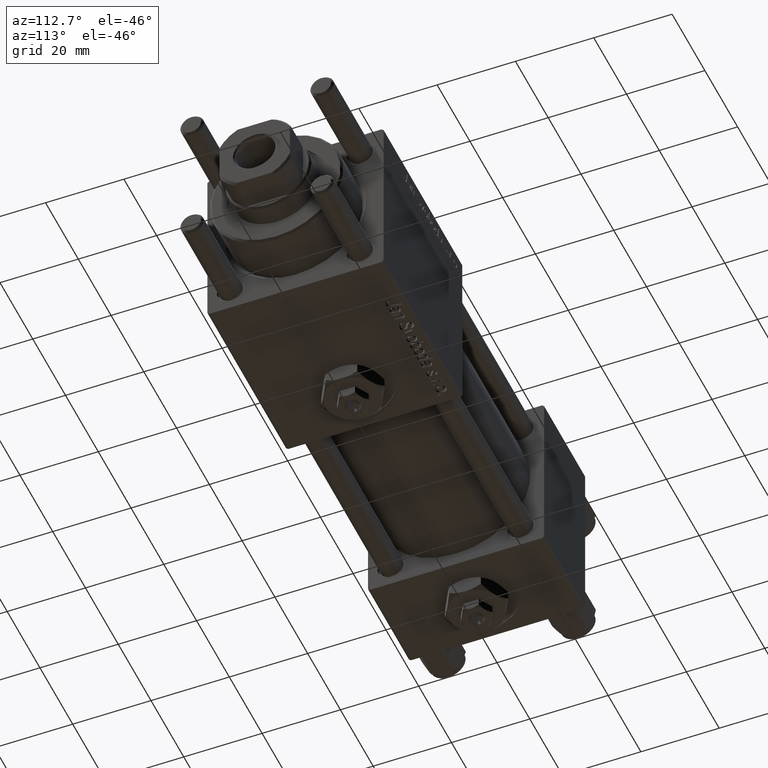
[diagram: clean part render]
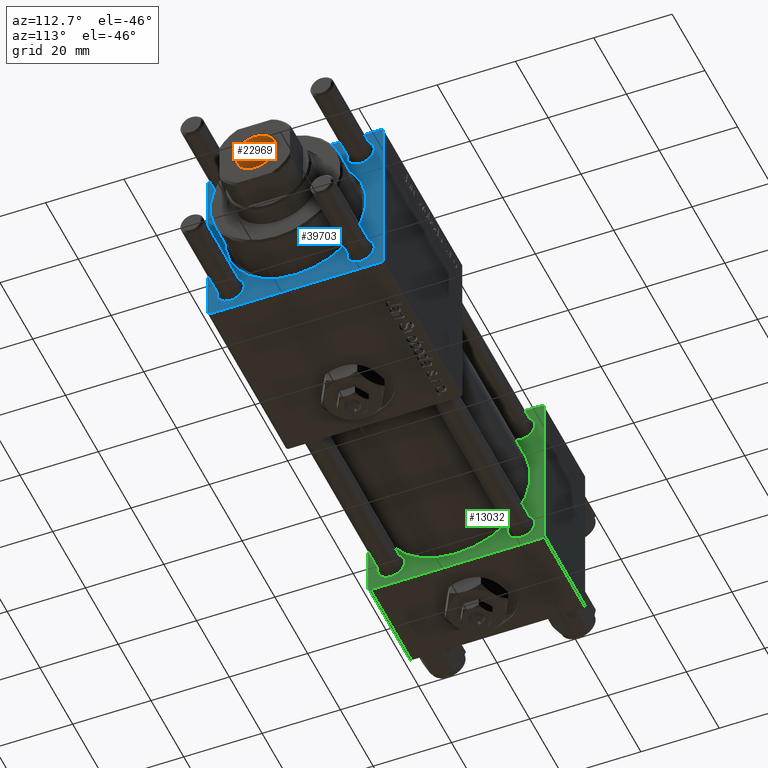
[diagram: same view with three faces highlighted in distinct colors, each labeled with its STEP entity id]
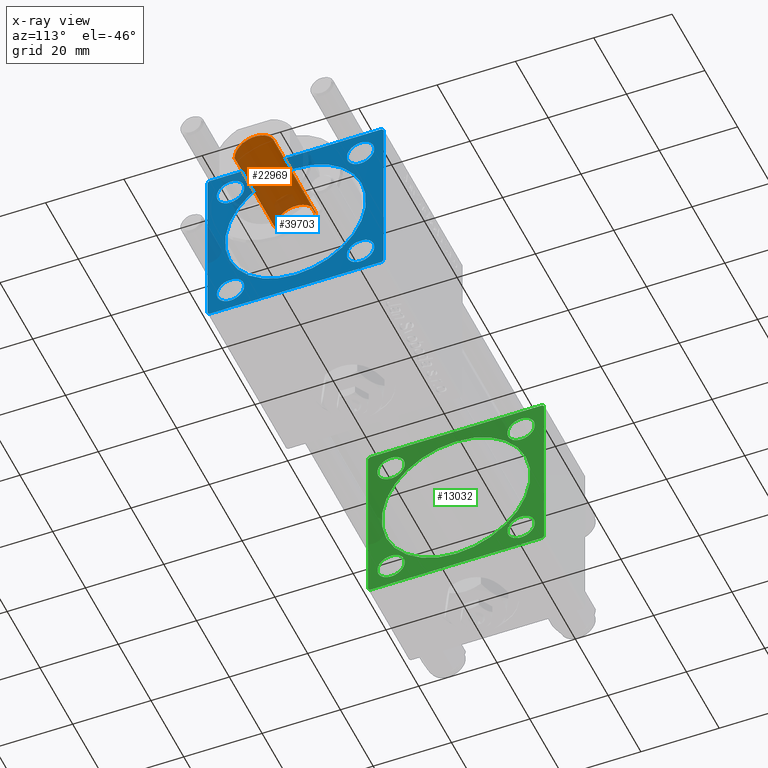
[diagram: x-ray of the same camera — body ghosted, the three highlighted faces saturated]
A machine part, auxiliary view with three faces highlighted in distinct colors.
The next image is the same camera in x-ray (body ghosted, the three faces saturated) — at least one of them is partly hidden behind the body in this view.
Their STEP definitions:

[orange] entity #22969 — the highlighted cylindrical surface (edge-blend (fillet) strip) has radius 5.25 mm, axis along (1, 0, 0).
#507 = VERTEX_POINT ( 'NONE', #9830 ) ;
#764 = ORIENTED_EDGE ( 'NONE', *, *, #10084, .T. ) ;
#1212 = VERTEX_POINT ( 'NONE', #52643 ) ;
#1868 = AXIS2_PLACEMENT_3D ( 'NONE', #24897, #37678, #11201 ) ;
#3160 = EDGE_CURVE ( 'NONE', #44567, #507, #25040, .T. ) ;
#9830 = CARTESIAN_POINT ( 'NONE',  ( -5.249999999999997335, 6.429395695523601195E-16, 122.6999999999999744 ) ) ;
#10084 = EDGE_CURVE ( 'NONE', #507, #13199, #43448, .T. ) ;
#11201 = DIRECTION ( 'NONE',  ( 1.000000000000000000, 0.000000000000000000, 0.000000000000000000 ) ) ;
#13199 = VERTEX_POINT ( 'NONE', #13793 ) ;
#13793 = CARTESIAN_POINT ( 'NONE',  ( 5.249999999999997335, 0.000000000000000000, 122.6999999999999744 ) ) ;
#18019 = EDGE_CURVE ( 'NONE', #1212, #13199, #55469, .T. ) ;
#22969 = ADVANCED_FACE ( 'NONE', ( #38154 ), #28648, .F. ) ;
#23672 = CARTESIAN_POINT ( 'NONE',  ( 5.249999999999997335, 0.000000000000000000, 123.0000000000000000 ) ) ;
#23693 = ORIENTED_EDGE ( 'NONE', *, *, #3160, .T. ) ;
#24883 = DIRECTION ( 'NONE',  ( 1.000000000000000000, 0.000000000000000000, 0.000000000000000000 ) ) ;
#24897 = CARTESIAN_POINT ( 'NONE',  ( 0.000000000000000000, 0.000000000000000000, 98.00000000000000000 ) ) ;
#25040 = LINE ( 'NONE', #29783, #46229 ) ;
#25483 = CARTESIAN_POINT ( 'NONE',  ( 0.000000000000000000, 0.000000000000000000, 122.6999999999999744 ) ) ;
#26205 = DIRECTION ( 'NONE',  ( -0.000000000000000000, -0.000000000000000000, 1.000000000000000000 ) ) ;
#28037 = ORIENTED_EDGE ( 'NONE', *, *, #18019, .F. ) ;
#28648 = CYLINDRICAL_SURFACE ( 'NONE', #33632, 5.249999999999997335 ) ;
#29059 = ORIENTED_EDGE ( 'NONE', *, *, #42915, .F. ) ;
#29783 = CARTESIAN_POINT ( 'NONE',  ( -5.249999999999997335, 6.429395695523601195E-16, 123.0000000000000000 ) ) ;
#29814 = CARTESIAN_POINT ( 'NONE',  ( 0.000000000000000000, 0.000000000000000000, 123.0000000000000000 ) ) ;
#30749 = EDGE_LOOP ( 'NONE', ( #29059, #23693, #764, #28037 ) ) ;
#31096 = AXIS2_PLACEMENT_3D ( 'NONE', #25483, #43610, #24883 ) ;
#33632 = AXIS2_PLACEMENT_3D ( 'NONE', #29814, #47373, #56588 ) ;
#37088 = VECTOR ( 'NONE', #55760, 1000.000000000000000 ) ;
#37678 = DIRECTION ( 'NONE',  ( -0.000000000000000000, -0.000000000000000000, 1.000000000000000000 ) ) ;
#38154 = FACE_OUTER_BOUND ( 'NONE', #30749, .T. ) ;
#42915 = EDGE_CURVE ( 'NONE', #44567, #1212, #46518, .T. ) ;
#43448 = CIRCLE ( 'NONE', #31096, 5.249999999999997335 ) ;
#43610 = DIRECTION ( 'NONE',  ( 0.000000000000000000, 0.000000000000000000, 1.000000000000000000 ) ) ;
#44567 = VERTEX_POINT ( 'NONE', #44811 ) ;
#44811 = CARTESIAN_POINT ( 'NONE',  ( -5.249999999999995559, 6.429395695523600208E-16, 98.00000000000000000 ) ) ;
#46229 = VECTOR ( 'NONE', #26205, 1000.000000000000000 ) ;
#46518 = CIRCLE ( 'NONE', #1868, 5.249999999999995559 ) ;
#47373 = DIRECTION ( 'NONE',  ( -0.000000000000000000, -0.000000000000000000, 1.000000000000000000 ) ) ;
#52643 = CARTESIAN_POINT ( 'NONE',  ( 5.249999999999995559, 0.000000000000000000, 98.00000000000000000 ) ) ;
#55469 = LINE ( 'NONE', #23672, #37088 ) ;
#55760 = DIRECTION ( 'NONE',  ( -0.000000000000000000, -0.000000000000000000, 1.000000000000000000 ) ) ;
#56588 = DIRECTION ( 'NONE',  ( 1.000000000000000000, 0.000000000000000000, 0.000000000000000000 ) ) ;

[blue] entity #39703 — the highlighted planar face has unit normal (-1, 0, 0).
#50 = EDGE_CURVE ( 'NONE', #30223, #31483, #52806, .T. ) ;
#433 = FACE_BOUND ( 'NONE', #9035, .T. ) ;
#621 = CARTESIAN_POINT ( 'NONE',  ( 123.0000000000000142, 0.000000000000000000, 0.000000000000000000 ) ) ;
#659 = ORIENTED_EDGE ( 'NONE', *, *, #32603, .T. ) ;
#922 = VERTEX_POINT ( 'NONE', #8148 ) ;
#1030 = CARTESIAN_POINT ( 'NONE',  ( 123.0000000000000142, -21.99999999999998224, 22.49999999999999289 ) ) ;
#1307 = VERTEX_POINT ( 'NONE', #5023 ) ;
#1461 = VERTEX_POINT ( 'NONE', #40354 ) ;
#2735 = EDGE_CURVE ( 'NONE', #24224, #15867, #4617, .T. ) ;
#3299 = CARTESIAN_POINT ( 'NONE',  ( 123.0000000000000142, -22.49999999999999645, -21.99999999999997868 ) ) ;
#3474 = EDGE_CURVE ( 'NONE', #27209, #8188, #55729, .T. ) ;
#3606 = DIRECTION ( 'NONE',  ( 0.000000000000000000, 0.000000000000000000, -1.000000000000000000 ) ) ;
#3696 = CARTESIAN_POINT ( 'NONE',  ( 123.0000000000000142, 22.50000000000000355, -22.49999999999999645 ) ) ;
#3704 = VERTEX_POINT ( 'NONE', #11040 ) ;
#4313 = CARTESIAN_POINT ( 'NONE',  ( 123.0000000000000142, -21.99999999999999645, -22.50000000000000000 ) ) ;
#4409 = CARTESIAN_POINT ( 'NONE',  ( 123.0000000000000142, 16.59999999999999787, -16.60000000000000497 ) ) ;
#4617 = LINE ( 'NONE', #4313, #44306 ) ;
#4849 = CARTESIAN_POINT ( 'NONE',  ( 123.0000000000000142, -16.59999999999999076, 20.10000000000000142 ) ) ;
#5023 = CARTESIAN_POINT ( 'NONE',  ( 123.0000000000000142, 22.50000000000000355, -21.99999999999999645 ) ) ;
#5264 = ORIENTED_EDGE ( 'NONE', *, *, #36277, .T. ) ;
#5676 = DIRECTION ( 'NONE',  ( -0.000000000000000000, -0.7071067811865573427, -0.7071067811865378028 ) ) ;
#7582 = DIRECTION ( 'NONE',  ( -0.000000000000000000, 0.7071067811865573427, 0.7071067811865378028 ) ) ;
#8148 = CARTESIAN_POINT ( 'NONE',  ( 123.0000000000000142, -16.59999999999999076, 13.10000000000001741 ) ) ;
#8188 = VERTEX_POINT ( 'NONE', #15850 ) ;
#8581 = ORIENTED_EDGE ( 'NONE', *, *, #44541, .T. ) ;
#8774 = DIRECTION ( 'NONE',  ( -1.000000000000000000, 0.000000000000000000, -0.000000000000000000 ) ) ;
#9035 = EDGE_LOOP ( 'NONE', ( #34767, #8581 ) ) ;
#9276 = EDGE_LOOP ( 'NONE', ( #33294, #54202 ) ) ;
#9456 = CARTESIAN_POINT ( 'NONE',  ( 123.0000000000000142, 16.59999999999999787, 16.60000000000000497 ) ) ;
#10090 = LINE ( 'NONE', #31821, #31035 ) ;
#10418 = CARTESIAN_POINT ( 'NONE',  ( 123.0000000000000142, -22.49999999999999645, 22.00000000000000711 ) ) ;
#11040 = CARTESIAN_POINT ( 'NONE',  ( 123.0000000000000142, 21.99999999999996092, 22.50000000000000355 ) ) ;
#11707 = LINE ( 'NONE', #56924, #56311 ) ;
#12040 = CARTESIAN_POINT ( 'NONE',  ( 123.0000000000000142, 22.50000000000000355, -22.00000000000001066 ) ) ;
#12756 = DIRECTION ( 'NONE',  ( 0.000000000000000000, 0.000000000000000000, 1.000000000000000000 ) ) ;
#12885 = CARTESIAN_POINT ( 'NONE',  ( 123.0000000000000142, 21.99999999999996092, 22.50000000000000355 ) ) ;
#13577 = DIRECTION ( 'NONE',  ( -1.000000000000000000, 0.000000000000000000, -0.000000000000000000 ) ) ;
#14457 = DIRECTION ( 'NONE',  ( 0.000000000000000000, 0.000000000000000000, 1.000000000000000000 ) ) ;
#14856 = EDGE_CURVE ( 'NONE', #19591, #1461, #42642, .T. ) ;
#14908 = VECTOR ( 'NONE', #35779, 1000.000000000000000 ) ;
#15458 = ORIENTED_EDGE ( 'NONE', *, *, #50, .T. ) ;
#15680 = DIRECTION ( 'NONE',  ( 0.000000000000000000, 0.000000000000000000, 1.000000000000000000 ) ) ;
#15850 = CARTESIAN_POINT ( 'NONE',  ( 123.0000000000000142, 16.59999999999999787, 20.10000000000003340 ) ) ;
#15867 = VERTEX_POINT ( 'NONE', #51683 ) ;
#16210 = EDGE_LOOP ( 'NONE', ( #48081, #24423 ) ) ;
#16453 = DIRECTION ( 'NONE',  ( 0.000000000000000000, 0.000000000000000000, 1.000000000000000000 ) ) ;
#16704 = AXIS2_PLACEMENT_3D ( 'NONE', #621, #28855, #24410 ) ;
#17009 = AXIS2_PLACEMENT_3D ( 'NONE', #4409, #44872, #12756 ) ;
#17423 = FACE_BOUND ( 'NONE', #9276, .T. ) ;
#17502 = DIRECTION ( 'NONE',  ( 0.000000000000000000, 0.000000000000000000, 1.000000000000000000 ) ) ;
#18320 = AXIS2_PLACEMENT_3D ( 'NONE', #27003, #44846, #36499 ) ;
#18383 = ORIENTED_EDGE ( 'NONE', *, *, #49251, .F. ) ;
#18923 = CARTESIAN_POINT ( 'NONE',  ( 123.0000000000000142, -16.59999999999999076, 16.60000000000000853 ) ) ;
#19140 = CARTESIAN_POINT ( 'NONE',  ( 123.0000000000000142, 22.50000000000000355, 21.99999999999997513 ) ) ;
#19591 = VERTEX_POINT ( 'NONE', #58520 ) ;
#19628 = CIRCLE ( 'NONE', #41466, 3.500000000000031086 ) ;
#19694 = ORIENTED_EDGE ( 'NONE', *, *, #49176, .T. ) ;
#19721 = CIRCLE ( 'NONE', #32072, 3.500000000000031086 ) ;
#20363 = DIRECTION ( 'NONE',  ( -1.000000000000000000, 0.000000000000000000, -0.000000000000000000 ) ) ;
#20942 = DIRECTION ( 'NONE',  ( 0.000000000000000000, 0.000000000000000000, 1.000000000000000000 ) ) ;
#20964 = CARTESIAN_POINT ( 'NONE',  ( 123.0000000000000142, -16.59999999999999076, -16.60000000000000853 ) ) ;
#21078 = CARTESIAN_POINT ( 'NONE',  ( 123.0000000000000142, -22.49999999999999645, 22.00000000000000711 ) ) ;
#23385 = VECTOR ( 'NONE', #5676, 1000.000000000000000 ) ;
#23682 = VERTEX_POINT ( 'NONE', #1030 ) ;
#23767 = VECTOR ( 'NONE', #7582, 1000.000000000000000 ) ;
#24224 = VERTEX_POINT ( 'NONE', #3299 ) ;
#24410 = DIRECTION ( 'NONE',  ( 0.000000000000000000, 0.000000000000000000, 1.000000000000000000 ) ) ;
#24423 = ORIENTED_EDGE ( 'NONE', *, *, #33566, .T. ) ;
#25637 = CIRCLE ( 'NONE', #42727, 3.499999999999989342 ) ;
#26084 = EDGE_CURVE ( 'NONE', #54550, #922, #48004, .T. ) ;
#26224 = CARTESIAN_POINT ( 'NONE',  ( 123.0000000000000142, 22.50000000000000355, 22.50000000000000355 ) ) ;
#26462 = CARTESIAN_POINT ( 'NONE',  ( 123.0000000000000142, -16.59999999999999076, -20.10000000000003695 ) ) ;
#26913 = CARTESIAN_POINT ( 'NONE',  ( 123.0000000000000142, 16.59999999999999787, 13.09999999999997300 ) ) ;
#27003 = CARTESIAN_POINT ( 'NONE',  ( 123.0000000000000142, 0.000000000000000000, 0.000000000000000000 ) ) ;
#27209 = VERTEX_POINT ( 'NONE', #26913 ) ;
#27238 = CARTESIAN_POINT ( 'NONE',  ( 123.0000000000000142, -16.59999999999999076, 16.60000000000000853 ) ) ;
#27725 = EDGE_LOOP ( 'NONE', ( #15458, #5264 ) ) ;
#27784 = ORIENTED_EDGE ( 'NONE', *, *, #55541, .F. ) ;
#27910 = ORIENTED_EDGE ( 'NONE', *, *, #32583, .T. ) ;
#28855 = DIRECTION ( 'NONE',  ( -1.000000000000000000, 0.000000000000000000, -0.000000000000000000 ) ) ;
#28920 = ORIENTED_EDGE ( 'NONE', *, *, #57136, .T. ) ;
#29847 = DIRECTION ( 'NONE',  ( 0.000000000000000000, -1.000000000000000000, -2.312964634635742957E-16 ) ) ;
#29857 = VERTEX_POINT ( 'NONE', #51535 ) ;
#29954 = AXIS2_PLACEMENT_3D ( 'NONE', #18923, #13577, #14457 ) ;
#30169 = DIRECTION ( 'NONE',  ( 0.000000000000000000, 0.000000000000000000, 1.000000000000000000 ) ) ;
#30223 = VERTEX_POINT ( 'NONE', #26462 ) ;
#30791 = CARTESIAN_POINT ( 'NONE',  ( 123.0000000000000142, 0.000000000000000000, 0.000000000000000000 ) ) ;
#31035 = VECTOR ( 'NONE', #32995, 1000.000000000000000 ) ;
#31084 = FACE_OUTER_BOUND ( 'NONE', #54173, .T. ) ;
#31386 = PLANE ( 'NONE',  #32205 ) ;
#31483 = VERTEX_POINT ( 'NONE', #53361 ) ;
#31787 = ORIENTED_EDGE ( 'NONE', *, *, #56545, .T. ) ;
#31821 = CARTESIAN_POINT ( 'NONE',  ( 123.0000000000000142, -22.49999999999999645, 22.49999999999999289 ) ) ;
#32072 = AXIS2_PLACEMENT_3D ( 'NONE', #47701, #34297, #20942 ) ;
#32205 = AXIS2_PLACEMENT_3D ( 'NONE', #30791, #8774, #58463 ) ;
#32279 = DIRECTION ( 'NONE',  ( 0.000000000000000000, 0.7071067811865425767, -0.7071067811865525687 ) ) ;
#32583 = EDGE_CURVE ( 'NONE', #23682, #45141, #50882, .T. ) ;
#32603 = EDGE_CURVE ( 'NONE', #29857, #34161, #41417, .T. ) ;
#32995 = DIRECTION ( 'NONE',  ( 0.000000000000000000, 0.000000000000000000, -1.000000000000000000 ) ) ;
#33294 = ORIENTED_EDGE ( 'NONE', *, *, #43144, .T. ) ;
#33566 = EDGE_CURVE ( 'NONE', #1461, #19591, #19628, .T. ) ;
#34161 = VERTEX_POINT ( 'NONE', #48706 ) ;
#34297 = DIRECTION ( 'NONE',  ( -1.000000000000000000, 0.000000000000000000, -0.000000000000000000 ) ) ;
#34577 = CARTESIAN_POINT ( 'NONE',  ( 123.0000000000000142, 16.59999999999999787, -16.60000000000000497 ) ) ;
#34635 = LINE ( 'NONE', #12040, #23767 ) ;
#34767 = ORIENTED_EDGE ( 'NONE', *, *, #3474, .T. ) ;
#35173 = AXIS2_PLACEMENT_3D ( 'NONE', #38288, #56435, #15680 ) ;
#35779 = DIRECTION ( 'NONE',  ( 0.000000000000000000, -0.7071067811865573427, 0.7071067811865378028 ) ) ;
#36277 = EDGE_CURVE ( 'NONE', #31483, #30223, #19721, .T. ) ;
#36499 = DIRECTION ( 'NONE',  ( 0.000000000000000000, 0.000000000000000000, 1.000000000000000000 ) ) ;
#38258 = CIRCLE ( 'NONE', #18320, 18.00000000000000355 ) ;
#38288 = CARTESIAN_POINT ( 'NONE',  ( 123.0000000000000142, 16.59999999999999787, 16.60000000000000497 ) ) ;
#39509 = AXIS2_PLACEMENT_3D ( 'NONE', #20964, #20363, #30169 ) ;
#39703 = ADVANCED_FACE ( 'NONE', ( #40898, #40600, #433, #17423, #45060, #31084 ), #31386, .F. ) ;
#40354 = CARTESIAN_POINT ( 'NONE',  ( 123.0000000000000142, 16.59999999999999787, -13.09999999999997300 ) ) ;
#40600 = FACE_BOUND ( 'NONE', #16210, .T. ) ;
#40876 = DIRECTION ( 'NONE',  ( 0.000000000000000000, -1.000000000000000000, -7.709882115452476934E-17 ) ) ;
#40898 = FACE_BOUND ( 'NONE', #27725, .T. ) ;
#40925 = DIRECTION ( 'NONE',  ( -1.000000000000000000, 0.000000000000000000, -0.000000000000000000 ) ) ;
#41417 = CIRCLE ( 'NONE', #16704, 18.00000000000000355 ) ;
#41466 = AXIS2_PLACEMENT_3D ( 'NONE', #34577, #57204, #16453 ) ;
#42642 = CIRCLE ( 'NONE', #17009, 3.500000000000031086 ) ;
#42727 = AXIS2_PLACEMENT_3D ( 'NONE', #27238, #40925, #45081 ) ;
#43144 = EDGE_CURVE ( 'NONE', #922, #54550, #25637, .T. ) ;
#44306 = VECTOR ( 'NONE', #32279, 999.9999999999998863 ) ;
#44418 = EDGE_LOOP ( 'NONE', ( #48809, #659 ) ) ;
#44541 = EDGE_CURVE ( 'NONE', #8188, #27209, #48464, .T. ) ;
#44563 = DIRECTION ( 'NONE',  ( -1.000000000000000000, 0.000000000000000000, -0.000000000000000000 ) ) ;
#44846 = DIRECTION ( 'NONE',  ( -1.000000000000000000, 0.000000000000000000, -0.000000000000000000 ) ) ;
#44872 = DIRECTION ( 'NONE',  ( -1.000000000000000000, 0.000000000000000000, -0.000000000000000000 ) ) ;
#44920 = VERTEX_POINT ( 'NONE', #19140 ) ;
#45060 = FACE_BOUND ( 'NONE', #44418, .T. ) ;
#45081 = DIRECTION ( 'NONE',  ( 0.000000000000000000, 0.000000000000000000, 1.000000000000000000 ) ) ;
#45141 = VERTEX_POINT ( 'NONE', #21078 ) ;
#45633 = LINE ( 'NONE', #3696, #57004 ) ;
#46547 = CARTESIAN_POINT ( 'NONE',  ( 123.0000000000000142, 22.00000000000000355, -22.49999999999999645 ) ) ;
#47701 = CARTESIAN_POINT ( 'NONE',  ( 123.0000000000000142, -16.59999999999999076, -16.60000000000000853 ) ) ;
#48004 = CIRCLE ( 'NONE', #29954, 3.499999999999989342 ) ;
#48081 = ORIENTED_EDGE ( 'NONE', *, *, #14856, .T. ) ;
#48464 = CIRCLE ( 'NONE', #35173, 3.500000000000031086 ) ;
#48706 = CARTESIAN_POINT ( 'NONE',  ( 123.0000000000000142, 0.000000000000000000, -18.00000000000000355 ) ) ;
#48809 = ORIENTED_EDGE ( 'NONE', *, *, #56216, .T. ) ;
#49176 = EDGE_CURVE ( 'NONE', #54262, #1307, #34635, .T. ) ;
#49251 = EDGE_CURVE ( 'NONE', #54262, #15867, #45633, .T. ) ;
#50863 = ORIENTED_EDGE ( 'NONE', *, *, #2735, .T. ) ;
#50882 = LINE ( 'NONE', #10418, #23385 ) ;
#51535 = CARTESIAN_POINT ( 'NONE',  ( 123.0000000000000142, 2.204364238465235822E-15, 18.00000000000000355 ) ) ;
#51683 = CARTESIAN_POINT ( 'NONE',  ( 123.0000000000000142, -21.99999999999998224, -22.50000000000000000 ) ) ;
#52172 = ORIENTED_EDGE ( 'NONE', *, *, #57498, .T. ) ;
#52806 = CIRCLE ( 'NONE', #39509, 3.500000000000031086 ) ;
#53361 = CARTESIAN_POINT ( 'NONE',  ( 123.0000000000000142, -16.59999999999999076, -13.09999999999997655 ) ) ;
#54173 = EDGE_LOOP ( 'NONE', ( #28920, #50863, #18383, #19694, #27784, #52172, #31787, #27910 ) ) ;
#54183 = LINE ( 'NONE', #26224, #57213 ) ;
#54202 = ORIENTED_EDGE ( 'NONE', *, *, #26084, .T. ) ;
#54262 = VERTEX_POINT ( 'NONE', #46547 ) ;
#54550 = VERTEX_POINT ( 'NONE', #4849 ) ;
#55541 = EDGE_CURVE ( 'NONE', #44920, #1307, #54183, .T. ) ;
#55729 = CIRCLE ( 'NONE', #57651, 3.500000000000031086 ) ;
#56216 = EDGE_CURVE ( 'NONE', #34161, #29857, #38258, .T. ) ;
#56311 = VECTOR ( 'NONE', #29847, 1000.000000000000000 ) ;
#56435 = DIRECTION ( 'NONE',  ( -1.000000000000000000, 0.000000000000000000, -0.000000000000000000 ) ) ;
#56545 = EDGE_CURVE ( 'NONE', #3704, #23682, #11707, .T. ) ;
#56924 = CARTESIAN_POINT ( 'NONE',  ( 123.0000000000000142, 22.50000000000000355, 22.50000000000000355 ) ) ;
#57004 = VECTOR ( 'NONE', #40876, 1000.000000000000000 ) ;
#57136 = EDGE_CURVE ( 'NONE', #45141, #24224, #10090, .T. ) ;
#57204 = DIRECTION ( 'NONE',  ( -1.000000000000000000, 0.000000000000000000, -0.000000000000000000 ) ) ;
#57213 = VECTOR ( 'NONE', #3606, 1000.000000000000000 ) ;
#57498 = EDGE_CURVE ( 'NONE', #44920, #3704, #58411, .T. ) ;
#57651 = AXIS2_PLACEMENT_3D ( 'NONE', #9456, #44563, #17502 ) ;
#58411 = LINE ( 'NONE', #12885, #14908 ) ;
#58463 = DIRECTION ( 'NONE',  ( -0.000000000000000000, 0.000000000000000000, 1.000000000000000000 ) ) ;
#58520 = CARTESIAN_POINT ( 'NONE',  ( 123.0000000000000142, 16.59999999999999787, -20.10000000000003340 ) ) ;

[green] entity #13032 — the highlighted planar face has unit normal (-1, 0, 0).
#97 = VERTEX_POINT ( 'NONE', #57529 ) ;
#1182 = ORIENTED_EDGE ( 'NONE', *, *, #18907, .T. ) ;
#1322 = FACE_BOUND ( 'NONE', #43421, .T. ) ;
#1532 = DIRECTION ( 'NONE',  ( 0.000000000000000000, -1.000000000000000000, -2.312964634635742957E-16 ) ) ;
#1926 = DIRECTION ( 'NONE',  ( 0.000000000000000000, 0.000000000000000000, 1.000000000000000000 ) ) ;
#2619 = VERTEX_POINT ( 'NONE', #26658 ) ;
#2818 = CARTESIAN_POINT ( 'NONE',  ( 25.00000000000000000, -2.602085213965210642E-15, 0.000000000000000000 ) ) ;
#3014 = CARTESIAN_POINT ( 'NONE',  ( 25.00000000000000000, 16.59999999999999787, -16.60000000000000497 ) ) ;
#3897 = DIRECTION ( 'NONE',  ( -1.000000000000000000, 0.000000000000000000, -0.000000000000000000 ) ) ;
#4659 = CARTESIAN_POINT ( 'NONE',  ( 25.00000000000000000, 16.59999999999999787, -16.60000000000000497 ) ) ;
#5463 = VERTEX_POINT ( 'NONE', #20233 ) ;
#5521 = ORIENTED_EDGE ( 'NONE', *, *, #34242, .T. ) ;
#5802 = FACE_BOUND ( 'NONE', #12757, .T. ) ;
#5881 = CARTESIAN_POINT ( 'NONE',  ( 25.00000000000000000, 22.50000000000000000, -21.99999999999998224 ) ) ;
#6264 = CARTESIAN_POINT ( 'NONE',  ( 25.00000000000000000, -16.59999999999999076, 13.10000000000001386 ) ) ;
#6680 = FACE_BOUND ( 'NONE', #30719, .T. ) ;
#6928 = VERTEX_POINT ( 'NONE', #38245 ) ;
#6948 = VERTEX_POINT ( 'NONE', #42705 ) ;
#6959 = ORIENTED_EDGE ( 'NONE', *, *, #32040, .T. ) ;
#7472 = VERTEX_POINT ( 'NONE', #50961 ) ;
#8553 = VERTEX_POINT ( 'NONE', #57138 ) ;
#9174 = DIRECTION ( 'NONE',  ( 0.000000000000000000, 0.7071067811865426878, -0.7071067811865524577 ) ) ;
#9188 = AXIS2_PLACEMENT_3D ( 'NONE', #16021, #38922, #34147 ) ;
#9573 = VERTEX_POINT ( 'NONE', #10519 ) ;
#9588 = DIRECTION ( 'NONE',  ( -1.000000000000000000, 0.000000000000000000, -0.000000000000000000 ) ) ;
#9982 = DIRECTION ( 'NONE',  ( -1.000000000000000000, 0.000000000000000000, -0.000000000000000000 ) ) ;
#10455 = DIRECTION ( 'NONE',  ( 0.000000000000000000, 0.000000000000000000, 1.000000000000000000 ) ) ;
#10472 = CARTESIAN_POINT ( 'NONE',  ( 25.00000000000000000, 22.50000000000000000, -22.49999999999999645 ) ) ;
#10519 = CARTESIAN_POINT ( 'NONE',  ( 25.00000000000000000, -16.59999999999999076, -13.10000000000001741 ) ) ;
#10549 = DIRECTION ( 'NONE',  ( -1.000000000000000000, 0.000000000000000000, -0.000000000000000000 ) ) ;
#10799 = DIRECTION ( 'NONE',  ( 0.000000000000000000, 0.000000000000000000, 1.000000000000000000 ) ) ;
#11546 = CARTESIAN_POINT ( 'NONE',  ( 25.00000000000000000, 16.59999999999999787, -20.10000000000000853 ) ) ;
#12104 = AXIS2_PLACEMENT_3D ( 'NONE', #44221, #22230, #12992 ) ;
#12440 = EDGE_CURVE ( 'NONE', #2619, #5463, #32506, .T. ) ;
#12532 = ORIENTED_EDGE ( 'NONE', *, *, #12440, .F. ) ;
#12757 = EDGE_LOOP ( 'NONE', ( #30426, #5521 ) ) ;
#12992 = DIRECTION ( 'NONE',  ( 0.000000000000000000, 0.000000000000000000, 1.000000000000000000 ) ) ;
#13032 = ADVANCED_FACE ( 'NONE', ( #46561, #5802, #51312, #1322, #6680, #15024 ), #56646, .F. ) ;
#13963 = CARTESIAN_POINT ( 'NONE',  ( 25.00000000000000000, -2.602085213965210642E-15, 0.000000000000000000 ) ) ;
#14145 = EDGE_CURVE ( 'NONE', #6928, #6948, #54966, .T. ) ;
#14193 = DIRECTION ( 'NONE',  ( 0.000000000000000000, 0.000000000000000000, -1.000000000000000000 ) ) ;
#14286 = VECTOR ( 'NONE', #14193, 1000.000000000000000 ) ;
#14511 = EDGE_CURVE ( 'NONE', #6948, #6928, #32204, .T. ) ;
#15024 = FACE_OUTER_BOUND ( 'NONE', #19405, .T. ) ;
#15829 = VERTEX_POINT ( 'NONE', #29379 ) ;
#16021 = CARTESIAN_POINT ( 'NONE',  ( 25.00000000000000000, 16.59999999999999787, 16.60000000000000497 ) ) ;
#16032 = AXIS2_PLACEMENT_3D ( 'NONE', #51566, #32262, #10799 ) ;
#17300 = VERTEX_POINT ( 'NONE', #48936 ) ;
#17318 = DIRECTION ( 'NONE',  ( 1.000000000000000000, -0.000000000000000000, 0.000000000000000000 ) ) ;
#18444 = EDGE_CURVE ( 'NONE', #40341, #30177, #22847, .T. ) ;
#18672 = CIRCLE ( 'NONE', #9188, 3.500000000000003109 ) ;
#18896 = CARTESIAN_POINT ( 'NONE',  ( 25.00000000000000000, 22.50000000000000000, 22.50000000000000355 ) ) ;
#18907 = EDGE_CURVE ( 'NONE', #2619, #41553, #33817, .T. ) ;
#19236 = ORIENTED_EDGE ( 'NONE', *, *, #39365, .T. ) ;
#19405 = EDGE_LOOP ( 'NONE', ( #12532, #1182, #27186, #25222, #37434, #49309, #50720, #6959 ) ) ;
#19805 = AXIS2_PLACEMENT_3D ( 'NONE', #3014, #53282, #39604 ) ;
#20233 = CARTESIAN_POINT ( 'NONE',  ( 25.00000000000000000, -21.99999999999997158, -22.50000000000000711 ) ) ;
#20487 = EDGE_LOOP ( 'NONE', ( #19236, #50443 ) ) ;
#21168 = CIRCLE ( 'NONE', #54403, 3.500000000000003109 ) ;
#21479 = DIRECTION ( 'NONE',  ( 0.000000000000000000, 0.000000000000000000, 1.000000000000000000 ) ) ;
#21618 = VERTEX_POINT ( 'NONE', #11546 ) ;
#22230 = DIRECTION ( 'NONE',  ( -1.000000000000000000, 0.000000000000000000, -0.000000000000000000 ) ) ;
#22513 = EDGE_CURVE ( 'NONE', #15829, #7472, #50629, .T. ) ;
#22675 = AXIS2_PLACEMENT_3D ( 'NONE', #39415, #40010, #57560 ) ;
#22834 = LINE ( 'NONE', #23702, #14286 ) ;
#22847 = CIRCLE ( 'NONE', #36110, 3.499999999999992895 ) ;
#22892 = LINE ( 'NONE', #36530, #48083 ) ;
#23020 = ORIENTED_EDGE ( 'NONE', *, *, #18444, .T. ) ;
#23222 = VECTOR ( 'NONE', #55092, 1000.000000000000000 ) ;
#23276 = CARTESIAN_POINT ( 'NONE',  ( 25.00000000000000000, 22.50000000000000000, 22.50000000000000355 ) ) ;
#23431 = CIRCLE ( 'NONE', #47131, 3.500000000000003109 ) ;
#23456 = DIRECTION ( 'NONE',  ( -0.000000000000000000, -0.7071067811865525687, -0.7071067811865425767 ) ) ;
#23536 = EDGE_CURVE ( 'NONE', #43325, #15829, #43320, .T. ) ;
#23702 = CARTESIAN_POINT ( 'NONE',  ( 25.00000000000000000, -22.50000000000000000, 22.50000000000000000 ) ) ;
#24185 = VECTOR ( 'NONE', #43909, 1000.000000000000114 ) ;
#25222 = ORIENTED_EDGE ( 'NONE', *, *, #23536, .T. ) ;
#26658 = CARTESIAN_POINT ( 'NONE',  ( 25.00000000000000000, 21.99999999999999289, -22.49999999999999645 ) ) ;
#27186 = ORIENTED_EDGE ( 'NONE', *, *, #56413, .F. ) ;
#27895 = VERTEX_POINT ( 'NONE', #48199 ) ;
#28437 = DIRECTION ( 'NONE',  ( 0.000000000000000000, 0.000000000000000000, 1.000000000000000000 ) ) ;
#28533 = CARTESIAN_POINT ( 'NONE',  ( 25.00000000000000000, 22.50000000000000000, -21.99999999999996803 ) ) ;
#29289 = VERTEX_POINT ( 'NONE', #43927 ) ;
#29379 = CARTESIAN_POINT ( 'NONE',  ( 25.00000000000000000, 21.99999999999999289, 22.50000000000000355 ) ) ;
#30177 = VERTEX_POINT ( 'NONE', #38655 ) ;
#30426 = ORIENTED_EDGE ( 'NONE', *, *, #39512, .T. ) ;
#30719 = EDGE_LOOP ( 'NONE', ( #49017, #53092 ) ) ;
#32040 = EDGE_CURVE ( 'NONE', #34779, #5463, #22892, .T. ) ;
#32096 = DIRECTION ( 'NONE',  ( 0.000000000000000000, 0.000000000000000000, 1.000000000000000000 ) ) ;
#32204 = CIRCLE ( 'NONE', #41673, 19.00000000000000000 ) ;
#32262 = DIRECTION ( 'NONE',  ( -1.000000000000000000, 0.000000000000000000, -0.000000000000000000 ) ) ;
#32506 = LINE ( 'NONE', #10472, #39734 ) ;
#33784 = EDGE_CURVE ( 'NONE', #8553, #97, #18672, .T. ) ;
#33817 = LINE ( 'NONE', #5881, #52246 ) ;
#34147 = DIRECTION ( 'NONE',  ( 0.000000000000000000, 0.000000000000000000, 1.000000000000000000 ) ) ;
#34242 = EDGE_CURVE ( 'NONE', #17300, #21618, #23431, .T. ) ;
#34779 = VERTEX_POINT ( 'NONE', #52141 ) ;
#35042 = AXIS2_PLACEMENT_3D ( 'NONE', #2818, #17318, #1926 ) ;
#35430 = CARTESIAN_POINT ( 'NONE',  ( 25.00000000000000000, -16.59999999999999076, 16.60000000000000853 ) ) ;
#36110 = AXIS2_PLACEMENT_3D ( 'NONE', #35430, #3897, #21479 ) ;
#36348 = ORIENTED_EDGE ( 'NONE', *, *, #39868, .T. ) ;
#36493 = ORIENTED_EDGE ( 'NONE', *, *, #56757, .T. ) ;
#36530 = CARTESIAN_POINT ( 'NONE',  ( 25.00000000000000000, -21.99999999999998579, -22.50000000000000711 ) ) ;
#37089 = VECTOR ( 'NONE', #23456, 999.9999999999998863 ) ;
#37434 = ORIENTED_EDGE ( 'NONE', *, *, #22513, .T. ) ;
#37694 = CIRCLE ( 'NONE', #12104, 3.499999999999989342 ) ;
#38245 = CARTESIAN_POINT ( 'NONE',  ( 25.00000000000000000, -2.752562955852396712E-16, -19.00000000000000000 ) ) ;
#38655 = CARTESIAN_POINT ( 'NONE',  ( 25.00000000000000000, -16.59999999999999076, 20.10000000000000142 ) ) ;
#38784 = AXIS2_PLACEMENT_3D ( 'NONE', #51015, #10549, #45461 ) ;
#38922 = DIRECTION ( 'NONE',  ( -1.000000000000000000, 0.000000000000000000, -0.000000000000000000 ) ) ;
#39214 = VECTOR ( 'NONE', #42343, 1000.000000000000000 ) ;
#39365 = EDGE_CURVE ( 'NONE', #29289, #9573, #43541, .T. ) ;
#39415 = CARTESIAN_POINT ( 'NONE',  ( 25.00000000000000000, -16.59999999999999076, -16.60000000000000853 ) ) ;
#39512 = EDGE_CURVE ( 'NONE', #21618, #17300, #45448, .T. ) ;
#39604 = DIRECTION ( 'NONE',  ( 0.000000000000000000, 0.000000000000000000, 1.000000000000000000 ) ) ;
#39734 = VECTOR ( 'NONE', #1532, 1000.000000000000000 ) ;
#39742 = ORIENTED_EDGE ( 'NONE', *, *, #33784, .T. ) ;
#39868 = EDGE_CURVE ( 'NONE', #30177, #40341, #42644, .T. ) ;
#40010 = DIRECTION ( 'NONE',  ( -1.000000000000000000, 0.000000000000000000, -0.000000000000000000 ) ) ;
#40341 = VERTEX_POINT ( 'NONE', #6264 ) ;
#40426 = DIRECTION ( 'NONE',  ( 1.000000000000000000, -0.000000000000000000, 0.000000000000000000 ) ) ;
#41553 = VERTEX_POINT ( 'NONE', #28533 ) ;
#41673 = AXIS2_PLACEMENT_3D ( 'NONE', #13963, #40426, #32096 ) ;
#42343 = DIRECTION ( 'NONE',  ( 0.000000000000000000, 0.000000000000000000, -1.000000000000000000 ) ) ;
#42644 = CIRCLE ( 'NONE', #16032, 3.499999999999992895 ) ;
#42705 = CARTESIAN_POINT ( 'NONE',  ( 25.00000000000000000, -2.602085213965210642E-15, 19.00000000000000000 ) ) ;
#43320 = LINE ( 'NONE', #57308, #24185 ) ;
#43325 = VERTEX_POINT ( 'NONE', #46689 ) ;
#43421 = EDGE_LOOP ( 'NONE', ( #39742, #36493 ) ) ;
#43541 = CIRCLE ( 'NONE', #22675, 3.499999999999989342 ) ;
#43909 = DIRECTION ( 'NONE',  ( 0.000000000000000000, -0.7071067811865474617, 0.7071067811865474617 ) ) ;
#43927 = CARTESIAN_POINT ( 'NONE',  ( 25.00000000000000000, -16.59999999999999076, -20.09999999999999787 ) ) ;
#44144 = EDGE_LOOP ( 'NONE', ( #23020, #36348 ) ) ;
#44221 = CARTESIAN_POINT ( 'NONE',  ( 25.00000000000000000, -16.59999999999999076, -16.60000000000000853 ) ) ;
#44353 = EDGE_CURVE ( 'NONE', #7472, #27895, #49718, .T. ) ;
#45448 = CIRCLE ( 'NONE', #19805, 3.500000000000003109 ) ;
#45461 = DIRECTION ( 'NONE',  ( -0.000000000000000000, 0.000000000000000000, 1.000000000000000000 ) ) ;
#45886 = CARTESIAN_POINT ( 'NONE',  ( 25.00000000000000000, 16.59999999999999787, 16.60000000000000497 ) ) ;
#46561 = FACE_BOUND ( 'NONE', #20487, .T. ) ;
#46689 = CARTESIAN_POINT ( 'NONE',  ( 25.00000000000000000, 22.50000000000000000, 21.99999999999999645 ) ) ;
#47131 = AXIS2_PLACEMENT_3D ( 'NONE', #4659, #9982, #28437 ) ;
#48083 = VECTOR ( 'NONE', #9174, 1000.000000000000000 ) ;
#48199 = CARTESIAN_POINT ( 'NONE',  ( 25.00000000000000000, -22.50000000000000000, 22.00000000000000000 ) ) ;
#48936 = CARTESIAN_POINT ( 'NONE',  ( 25.00000000000000000, 16.59999999999999787, -13.10000000000000142 ) ) ;
#49017 = ORIENTED_EDGE ( 'NONE', *, *, #14511, .F. ) ;
#49309 = ORIENTED_EDGE ( 'NONE', *, *, #44353, .T. ) ;
#49718 = LINE ( 'NONE', #53881, #37089 ) ;
#50121 = EDGE_CURVE ( 'NONE', #27895, #34779, #22834, .T. ) ;
#50443 = ORIENTED_EDGE ( 'NONE', *, *, #58471, .T. ) ;
#50629 = LINE ( 'NONE', #23276, #23222 ) ;
#50720 = ORIENTED_EDGE ( 'NONE', *, *, #50121, .T. ) ;
#50961 = CARTESIAN_POINT ( 'NONE',  ( 25.00000000000000000, -21.99999999999997868, 22.50000000000000000 ) ) ;
#51015 = CARTESIAN_POINT ( 'NONE',  ( 25.00000000000000000, 0.000000000000000000, 0.000000000000000000 ) ) ;
#51312 = FACE_BOUND ( 'NONE', #44144, .T. ) ;
#51566 = CARTESIAN_POINT ( 'NONE',  ( 25.00000000000000000, -16.59999999999999076, 16.60000000000000853 ) ) ;
#52141 = CARTESIAN_POINT ( 'NONE',  ( 25.00000000000000000, -22.50000000000000000, -21.99999999999997158 ) ) ;
#52246 = VECTOR ( 'NONE', #56734, 1000.000000000000000 ) ;
#53092 = ORIENTED_EDGE ( 'NONE', *, *, #14145, .F. ) ;
#53282 = DIRECTION ( 'NONE',  ( -1.000000000000000000, 0.000000000000000000, -0.000000000000000000 ) ) ;
#53881 = CARTESIAN_POINT ( 'NONE',  ( 25.00000000000000000, -22.50000000000000000, 22.00000000000000000 ) ) ;
#54403 = AXIS2_PLACEMENT_3D ( 'NONE', #45886, #9588, #10455 ) ;
#54966 = CIRCLE ( 'NONE', #35042, 19.00000000000000000 ) ;
#55092 = DIRECTION ( 'NONE',  ( 0.000000000000000000, -1.000000000000000000, -7.709882115452476934E-17 ) ) ;
#55742 = LINE ( 'NONE', #18896, #39214 ) ;
#56413 = EDGE_CURVE ( 'NONE', #43325, #41553, #55742, .T. ) ;
#56646 = PLANE ( 'NONE',  #38784 ) ;
#56734 = DIRECTION ( 'NONE',  ( -0.000000000000000000, 0.7071067811865426878, 0.7071067811865524577 ) ) ;
#56757 = EDGE_CURVE ( 'NONE', #97, #8553, #21168, .T. ) ;
#57138 = CARTESIAN_POINT ( 'NONE',  ( 25.00000000000000000, 16.59999999999999787, 13.10000000000000142 ) ) ;
#57308 = CARTESIAN_POINT ( 'NONE',  ( 25.00000000000000000, 21.99999999999999289, 22.50000000000000355 ) ) ;
#57529 = CARTESIAN_POINT ( 'NONE',  ( 25.00000000000000000, 16.59999999999999787, 20.10000000000000853 ) ) ;
#57560 = DIRECTION ( 'NONE',  ( 0.000000000000000000, 0.000000000000000000, 1.000000000000000000 ) ) ;
#58471 = EDGE_CURVE ( 'NONE', #9573, #29289, #37694, .T. ) ;